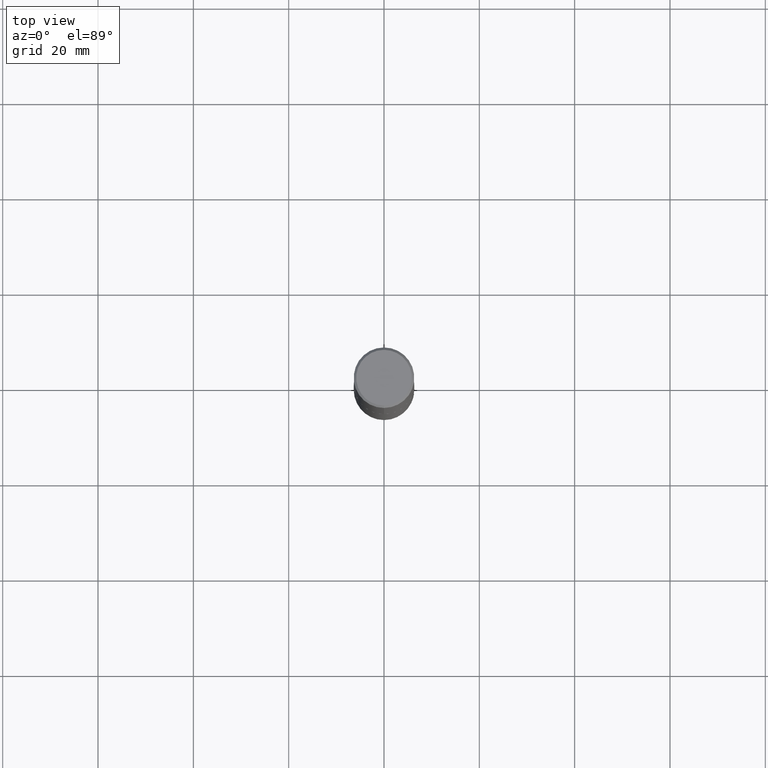
[diagram: clean part render]
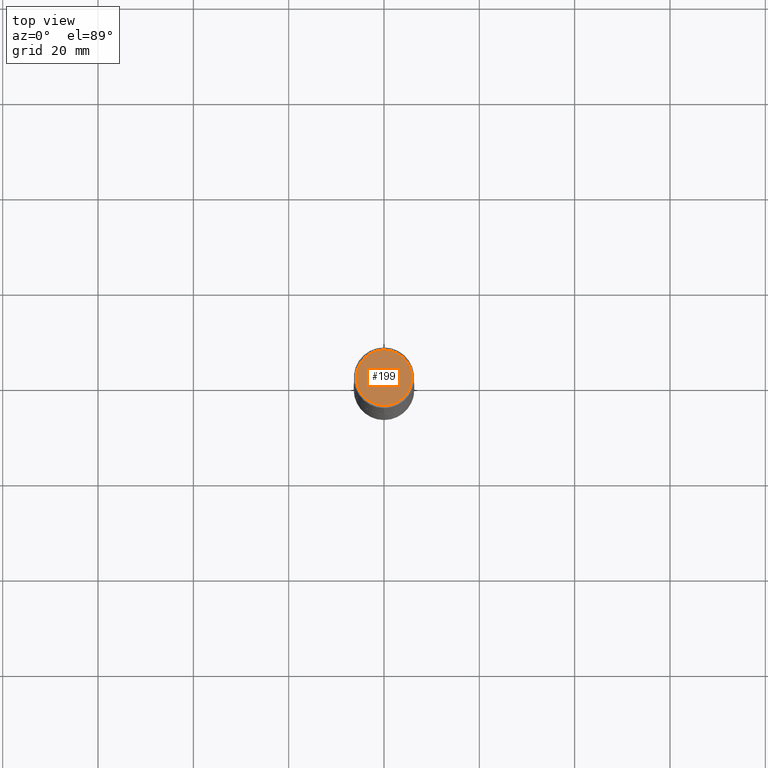
[diagram: same view with one face highlighted and labeled with its STEP entity id]
A machine part, top view. The second image highlights one B-rep face of the part: STEP entity #199.
In plain terms, the highlighted planar face has unit normal (0, -0, -1).
Its self-contained STEP definition (entity closure, byte-faithful):
#7 = ORIENTED_EDGE ( 'NONE', *, *, #243, .T. ) ;
#20 = AXIS2_PLACEMENT_3D ( 'NONE', #381, #39, #224 ) ;
#37 = CARTESIAN_POINT ( 'NONE',  ( 2.953248465557020919E-44, -4.217916217195114840E-30, -1.207849807704073908E-15 ) ) ;
#39 = DIRECTION ( 'NONE',  ( 2.445046103182866975E-29, -3.492086673601156067E-15, -1.000000000000000000 ) ) ;
#43 = EDGE_CURVE ( 'NONE', #184, #383, #359, .T. ) ;
#65 = ORIENTED_EDGE ( 'NONE', *, *, #43, .T. ) ;
#78 = DIRECTION ( 'NONE',  ( -2.445046103182867255E-29, 3.492086673601156067E-15, 1.000000000000000000 ) ) ;
#94 = AXIS2_PLACEMENT_3D ( 'NONE', #37, #246, #283 ) ;
#101 = PLANE ( 'NONE',  #20 ) ;
#160 = CARTESIAN_POINT ( 'NONE',  ( 1.675911042644707718E-15, 0.2300000000000011202, -2.011029742632343554E-15 ) ) ;
#171 = CIRCLE ( 'NONE', #94, 0.2300000000000011202 ) ;
#184 = VERTEX_POINT ( 'NONE', #323 ) ;
#199 = ADVANCED_FACE ( 'NONE', ( #360 ), #101, .F. ) ;
#201 = DIRECTION ( 'NONE',  ( -6.982962677686265922E-15, -1.000000000000000000, 3.492086673601156067E-15 ) ) ;
#220 = EDGE_LOOP ( 'NONE', ( #7, #65 ) ) ;
#224 = DIRECTION ( 'NONE',  ( 6.982962677686265922E-15, 1.000000000000000000, -3.492086673601156067E-15 ) ) ;
#243 = EDGE_CURVE ( 'NONE', #383, #184, #171, .T. ) ;
#246 = DIRECTION ( 'NONE',  ( -2.445046103182867255E-29, 3.492086673601156067E-15, 1.000000000000000000 ) ) ;
#283 = DIRECTION ( 'NONE',  ( -6.982962677686265922E-15, -1.000000000000000000, 3.492086673601156067E-15 ) ) ;
#323 = CARTESIAN_POINT ( 'NONE',  ( -1.646519519465170912E-15, -0.2300000000000011202, -4.046698727758040146E-16 ) ) ;
#359 = CIRCLE ( 'NONE', #390, 0.2300000000000011202 ) ;
#360 = FACE_OUTER_BOUND ( 'NONE', #220, .T. ) ;
#381 = CARTESIAN_POINT ( 'NONE',  ( 1.606081415867848956E-15, 0.2300000000000011202, -1.407104838780306896E-15 ) ) ;
#383 = VERTEX_POINT ( 'NONE', #160 ) ;
#390 = AXIS2_PLACEMENT_3D ( 'NONE', #397, #78, #201 ) ;
#397 = CARTESIAN_POINT ( 'NONE',  ( 2.953248465557020919E-44, -4.217916217195114840E-30, -1.207849807704073908E-15 ) ) ;